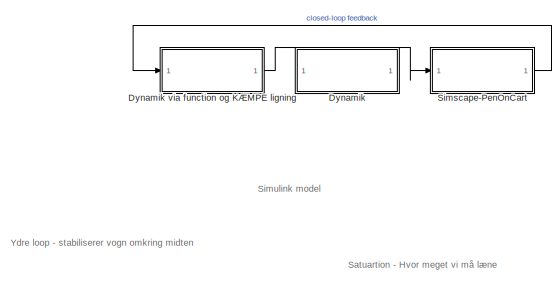
[diagram: root canvas - part 1/2, top left region]
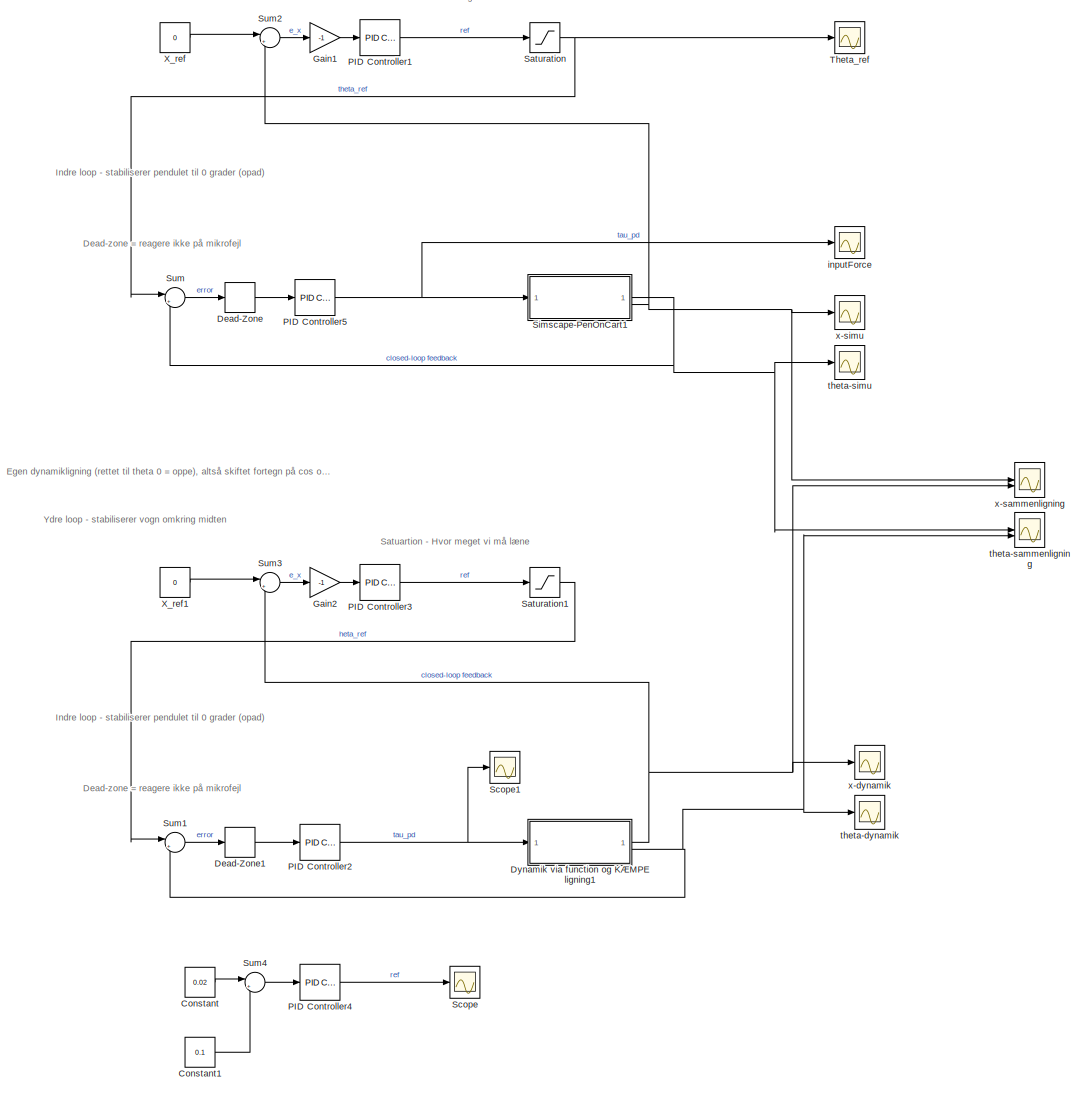
[diagram: root canvas - part 2/2, most of the canvas]
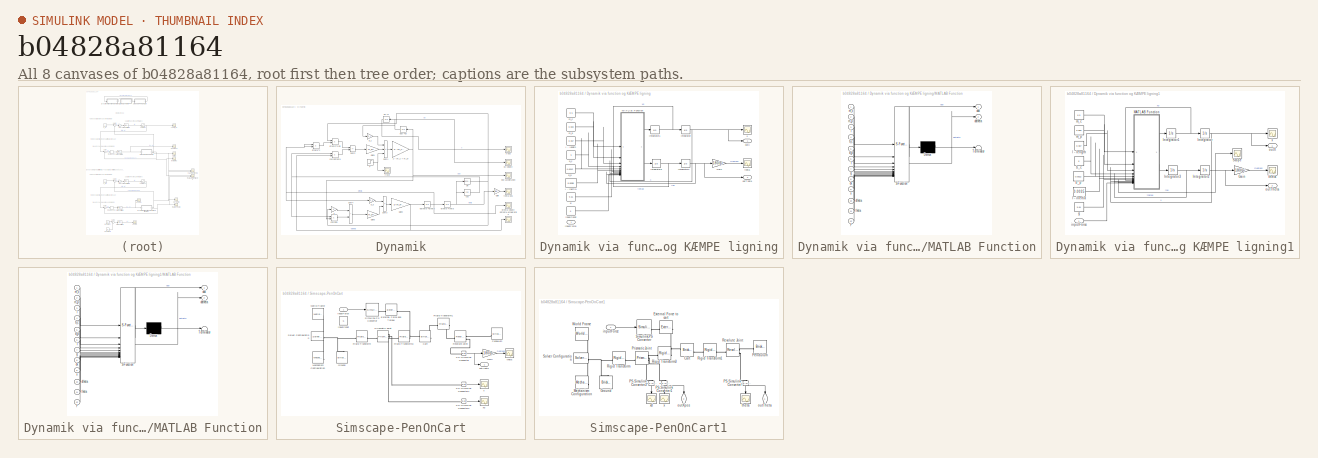
[diagram: thumbnail index - all 8 canvases of the model, root first then tree order]
MODEL slx_b04828a81164
KIND model
CONFIG AbsTol = auto
CONFIG EnableMultiTasking = off
CONFIG FixedStep = 0.01
CONFIG MaxStep = 0.01
CONFIG MinStep = 1e-6
CONFIG RelTol = 1e-3
CONFIG SampleTimeConstraint = Unconstrained
CONFIG SolverName = ode45
CONFIG StartTime = 0.0
CONFIG StopTime = 10
BLOCK [Constant] Constant
  Value = 0.02
BLOCK [Constant] Constant1
  Value = 0.1
BLOCK [DeadZone] Dead-Zone
  LowerValue = 0
  UpperValue = 0
BLOCK [DeadZone] Dead-Zone1
  LowerValue = 0
  UpperValue = 0
BLOCK [SubSystem] Dynamik
  Commented = on
BLOCK [SubSystem] Dynamik via function og KÆMPE ligning
  Commented = on
BLOCK [Gain] Dynamik via function og KÆMPE ligning/Gain
  Gain = 180/pi
BLOCK [Constant] Dynamik via function og KÆMPE ligning/I - inertia
  Value = 0.0035
BLOCK [Integrator] Dynamik via function og KÆMPE ligning/Integrator
BLOCK [Integrator] Dynamik via function og KÆMPE ligning/Integrator1
BLOCK [Integrator] Dynamik via function og KÆMPE ligning/Integrator2
  InitialCondition = pi/3
BLOCK [Integrator] Dynamik via function og KÆMPE ligning/Integrator3
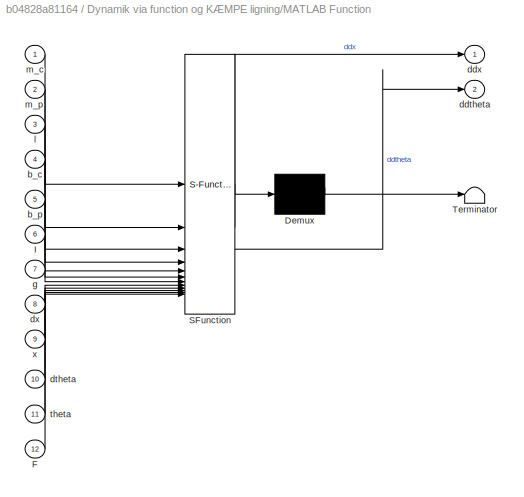
BLOCK [SubSystem] Dynamik via function og KÆMPE ligning/MATLAB Function
  ErrorFcn = Stateflow.Translate.translate
  PermitHierarchicalResolution = ExplicitOnly
  SFBlockType = MATLAB Function
  TreatAsAtomicUnit = on
BLOCK [Demux] Dynamik via function og KÆMPE ligning/MATLAB Function/ Demux 
  Outputs = 1
BLOCK [S-Function] Dynamik via function og KÆMPE ligning/MATLAB Function/ SFunction 
  EnableBusSupport = on
  FunctionName = sf_sfun
  PortCounts = [12 3]
  SFcnIsStateOwnerBlock = off
  SFunctionDeploymentMode = off
  Tag = Stateflow S-Function 2
BLOCK [Terminator] Dynamik via function og KÆMPE ligning/MATLAB Function/ Terminator 
BLOCK [Inport] Dynamik via function og KÆMPE ligning/MATLAB Function/F
  Port = 12
BLOCK [Inport] Dynamik via function og KÆMPE ligning/MATLAB Function/I
  Port = 6
BLOCK [Inport] Dynamik via function og KÆMPE ligning/MATLAB Function/b_c
  Port = 4
BLOCK [Inport] Dynamik via function og KÆMPE ligning/MATLAB Function/b_p
  Port = 5
BLOCK [Outport] Dynamik via function og KÆMPE ligning/MATLAB Function/ddtheta
  Port = 2
BLOCK [Outport] Dynamik via function og KÆMPE ligning/MATLAB Function/ddx
BLOCK [Inport] Dynamik via function og KÆMPE ligning/MATLAB Function/dtheta
  Port = 10
BLOCK [Inport] Dynamik via function og KÆMPE ligning/MATLAB Function/dx
  Port = 8
BLOCK [Inport] Dynamik via function og KÆMPE ligning/MATLAB Function/g
  Port = 7
BLOCK [Inport] Dynamik via function og KÆMPE ligning/MATLAB Function/l
  Port = 3
BLOCK [Inport] Dynamik via function og KÆMPE ligning/MATLAB Function/m_c
BLOCK [Inport] Dynamik via function og KÆMPE ligning/MATLAB Function/m_p
  Port = 2
BLOCK [Inport] Dynamik via function og KÆMPE ligning/MATLAB Function/theta
  Port = 11
BLOCK [Inport] Dynamik via function og KÆMPE ligning/MATLAB Function/x
  Port = 9
BLOCK [Constant] Dynamik via function og KÆMPE ligning/b_c
  Value = 5
BLOCK [Constant] Dynamik via function og KÆMPE ligning/b_p
  Value = 0.0012
BLOCK [Constant] Dynamik via function og KÆMPE ligning/g
  Value = 9.81
BLOCK [Constant] Dynamik via function og KÆMPE ligning/inputConst
  Value = 0
BLOCK [Inport] Dynamik via function og KÆMPE ligning/inputForce
BLOCK [Constant] Dynamik via function og KÆMPE ligning/l - length
  Value = 0.357
BLOCK [Constant] Dynamik via function og KÆMPE ligning/m_c
  Value = 0.5
BLOCK [Constant] Dynamik via function og KÆMPE ligning/m_p
  Value = 0.083
BLOCK [Outport] Dynamik via function og KÆMPE ligning/outTheta
  Port = 2
BLOCK [Outport] Dynamik via function og KÆMPE ligning/outX
BLOCK [Scope] Dynamik via function og KÆMPE ligning/theta
  Floating = off
  NumInputPorts = 1
  ScopeSpecificationString = Simulink.scopes.TimeScopeBlockCfg('CurrentConfiguration', extmgr.ConfigurationSet(extmgr.Configuration('Core','General UI',true),extmgr.Configuration('Core','Source UI',true),extmgr.Configuration('Sources','WiredSimulink',true,'DataLoggingVariableName','ScopeData2'),extmgr.Configuration('Visuals','Time Domain',true,'SerializedDisplays',{struct('MinYLimReal','-72.6893','MaxYLimReal','74.74326','YLa...<+1459ch>
BLOCK [Scope] Dynamik via function og KÆMPE ligning/x
  Floating = off
  NumInputPorts = 1
  ScopeSpecificationString = Simulink.scopes.TimeScopeBlockCfg('CurrentConfiguration', extmgr.ConfigurationSet(extmgr.Configuration('Core','General UI',true),extmgr.Configuration('Core','Source UI',true),extmgr.Configuration('Sources','WiredSimulink',true,'DataLoggingVariableName','ScopeData1'),extmgr.Configuration('Visuals','Time Domain',true,'SerializedDisplays',{struct('MinYLimReal','-0.02587','MaxYLimReal','0.02771','YLab...<+1449ch>
BLOCK [SubSystem] Dynamik via function og KÆMPE ligning1
BLOCK [Gain] Dynamik via function og KÆMPE ligning1/Gain
  Gain = 180/pi
BLOCK [Constant] Dynamik via function og KÆMPE ligning1/I - inertia
  Value = 0.0035
BLOCK [Integrator] Dynamik via function og KÆMPE ligning1/Integrator
BLOCK [Integrator] Dynamik via function og KÆMPE ligning1/Integrator1
BLOCK [Integrator] Dynamik via function og KÆMPE ligning1/Integrator2
  InitialCondition = 10*pi/180
BLOCK [Integrator] Dynamik via function og KÆMPE ligning1/Integrator3
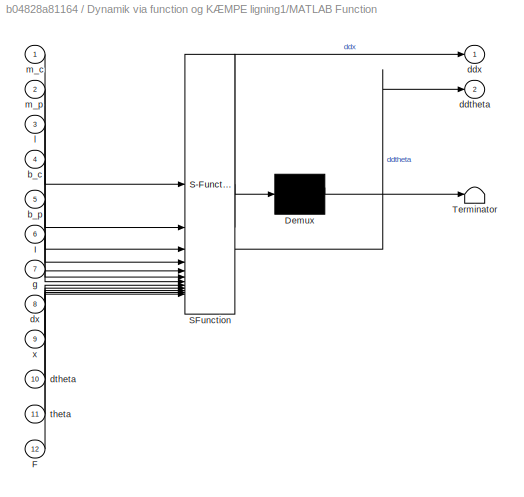
BLOCK [SubSystem] Dynamik via function og KÆMPE ligning1/MATLAB Function
  ErrorFcn = Stateflow.Translate.translate
  PermitHierarchicalResolution = ExplicitOnly
  SFBlockType = MATLAB Function
  TreatAsAtomicUnit = on
BLOCK [Demux] Dynamik via function og KÆMPE ligning1/MATLAB Function/ Demux 
  Outputs = 1
BLOCK [S-Function] Dynamik via function og KÆMPE ligning1/MATLAB Function/ SFunction 
  EnableBusSupport = on
  FunctionName = sf_sfun
  PortCounts = [12 3]
  SFcnIsStateOwnerBlock = off
  SFunctionDeploymentMode = off
  Tag = Stateflow S-Function 1
BLOCK [Terminator] Dynamik via function og KÆMPE ligning1/MATLAB Function/ Terminator 
BLOCK [Inport] Dynamik via function og KÆMPE ligning1/MATLAB Function/F
  Port = 12
BLOCK [Inport] Dynamik via function og KÆMPE ligning1/MATLAB Function/I
  Port = 6
BLOCK [Inport] Dynamik via function og KÆMPE ligning1/MATLAB Function/b_c
  Port = 4
BLOCK [Inport] Dynamik via function og KÆMPE ligning1/MATLAB Function/b_p
  Port = 5
BLOCK [Outport] Dynamik via function og KÆMPE ligning1/MATLAB Function/ddtheta
  Port = 2
BLOCK [Outport] Dynamik via function og KÆMPE ligning1/MATLAB Function/ddx
BLOCK [Inport] Dynamik via function og KÆMPE ligning1/MATLAB Function/dtheta
  Port = 10
BLOCK [Inport] Dynamik via function og KÆMPE ligning1/MATLAB Function/dx
  Port = 8
BLOCK [Inport] Dynamik via function og KÆMPE ligning1/MATLAB Function/g
  Port = 7
BLOCK [Inport] Dynamik via function og KÆMPE ligning1/MATLAB Function/l
  Port = 3
BLOCK [Inport] Dynamik via function og KÆMPE ligning1/MATLAB Function/m_c
BLOCK [Inport] Dynamik via function og KÆMPE ligning1/MATLAB Function/m_p
  Port = 2
BLOCK [Inport] Dynamik via function og KÆMPE ligning1/MATLAB Function/theta
  Port = 11
BLOCK [Inport] Dynamik via function og KÆMPE ligning1/MATLAB Function/x
  Port = 9
BLOCK [Scope] Dynamik via function og KÆMPE ligning1/Scope
  Floating = off
  NumInputPorts = 1
  ScopeSpecificationString = Simulink.scopes.TimeScopeBlockCfg('CurrentConfiguration', extmgr.ConfigurationSet(extmgr.Configuration('Core','General UI',true),extmgr.Configuration('Core','Source UI',true),extmgr.Configuration('Sources','WiredSimulink',true,'DataLoggingVariableName','ScopeData1'),extmgr.Configuration('Visuals','Time Domain',true,'SerializedDisplays',{struct('MinYLimReal','5.7338','MaxYLimReal','6.8455','YLabelR...<+1441ch>
BLOCK [Constant] Dynamik via function og KÆMPE ligning1/b_c
  Value = 5
BLOCK [Constant] Dynamik via function og KÆMPE ligning1/b_p
  Value = 0.0012
BLOCK [Constant] Dynamik via function og KÆMPE ligning1/g
  Value = 9.81
BLOCK [Inport] Dynamik via function og KÆMPE ligning1/inputForce
BLOCK [Constant] Dynamik via function og KÆMPE ligning1/l - length
  Value = 0.357
BLOCK [Constant] Dynamik via function og KÆMPE ligning1/m_c
  Value = 0.5
BLOCK [Constant] Dynamik via function og KÆMPE ligning1/m_p
  Value = 0.083
BLOCK [Outport] Dynamik via function og KÆMPE ligning1/outTheta
  Port = 2
BLOCK [Outport] Dynamik via function og KÆMPE ligning1/outX
BLOCK [Scope] Dynamik via function og KÆMPE ligning1/theta
  Floating = off
  NumInputPorts = 1
  ScopeSpecificationString = Simulink.scopes.TimeScopeBlockCfg('CurrentConfiguration', extmgr.ConfigurationSet(extmgr.Configuration('Core','General UI',true),extmgr.Configuration('Core','Source UI',true),extmgr.Configuration('Sources','WiredSimulink',true,'DataLoggingVariableName','ScopeData2'),extmgr.Configuration('Visuals','Time Domain',true,'SerializedDisplays',{struct('MinYLimReal','328.52265','MaxYLimReal','392.21808','Y...<+1469ch>
BLOCK [Scope] Dynamik via function og KÆMPE ligning1/x
  Floating = off
  NumInputPorts = 1
  ScopeSpecificationString = Simulink.scopes.TimeScopeBlockCfg('CurrentConfiguration', extmgr.ConfigurationSet(extmgr.Configuration('Core','General UI',true),extmgr.Configuration('Core','Source UI',true),extmgr.Configuration('Sources','WiredSimulink',true,'DataLoggingVariableName','ScopeData1'),extmgr.Configuration('Visuals','Time Domain',true,'SerializedDisplays',{struct('MinYLimReal','-0.16068','MaxYLimReal','0.04488','YLab...<+1449ch>
BLOCK [Gain] Dynamik/1// (m_c + m_p)
  Gain = 1/ (m_c + m_p)
BLOCK [Step] Dynamik/F
  After = 0
  SampleTime = 1
BLOCK [Gain] Dynamik/Gain
  Gain = 1/(pi/180)
BLOCK [Gain] Dynamik/Gain1
  Gain = m_p*l
BLOCK [Gain] Dynamik/Gain2
  Gain = 1/(m_p*(l^2)+I)
BLOCK [Gain] Dynamik/Gain3
  Gain = m_p*l
BLOCK [Sum] Dynamik/Sum1
  IconShape = rectangular
  Inputs = -++
BLOCK [Sum] Dynamik/Sum2
  IconShape = rectangular
  Inputs = +-
BLOCK [Sum] Dynamik/Sum3
  IconShape = rectangular
  Inputs = --
BLOCK [Sum] Dynamik/Sum4
  IconShape = rectangular
BLOCK [Gain] Dynamik/b_c
  Gain = b_c
BLOCK [Gain] Dynamik/b_p
  Gain = b_p
BLOCK [Trigonometry] Dynamik/cos
  Operator = cos
BLOCK [Product] Dynamik/cos*ddtheta
BLOCK [Product] Dynamik/cos*ddx
BLOCK [Integrator] Dynamik/ddtheta->dtheta
BLOCK [Scope] Dynamik/ddtheta-acceleration
  Floating = off
  NumInputPorts = 1
  ScopeSpecificationString = Simulink.scopes.TimeScopeBlockCfg('CurrentConfiguration', extmgr.ConfigurationSet(extmgr.Configuration('Core','General UI',true),extmgr.Configuration('Core','Source UI',true),extmgr.Configuration('Sources','WiredSimulink',true,'DataLoggingVariableName','ScopeData4'),extmgr.Configuration('Visuals','Time Domain',true,'SerializedDisplays',{struct('MinYLimReal','-0.35766','MaxYLimReal','0.04854','YLab...<+1455ch>
BLOCK [Integrator] Dynamik/ddx->dx
  NameLocation = top
BLOCK [Scope] Dynamik/ddx-acceleration
  Floating = off
  NumInputPorts = 1
  ScopeSpecificationString = Simulink.scopes.TimeScopeBlockCfg('CurrentConfiguration', extmgr.ConfigurationSet(extmgr.Configuration('Core','General UI',true),extmgr.Configuration('Core','Source UI',true),extmgr.Configuration('Sources','WiredSimulink',true,'DataLoggingVariableName','ScopeData3'),extmgr.Configuration('Visuals','Time Domain',true,'SerializedDisplays',{struct('MinYLimReal','-0.48595','MaxYLimReal','0.62768','YLab...<+1451ch>
BLOCK [Integrator] Dynamik/dtheta->theta
  InitialCondition = pi/3
BLOCK [Scope] Dynamik/dtheta-velocity
  Floating = off
  NumInputPorts = 1
  ScopeSpecificationString = Simulink.scopes.TimeScopeBlockCfg('CurrentConfiguration', extmgr.ConfigurationSet(extmgr.Configuration('Core','General UI',true),extmgr.Configuration('Core','Source UI',true),extmgr.Configuration('Sources','WiredSimulink',true,'DataLoggingVariableName','ScopeData5'),extmgr.Configuration('Visuals','Time Domain',true,'SerializedDisplays',{struct('MinYLimReal','-2.5243','MaxYLimReal','1.09547','YLabe...<+1450ch>
BLOCK [Product] Dynamik/dtheta^2
BLOCK [Product] Dynamik/dtheta^2*sin
BLOCK [Integrator] Dynamik/dx->x
  NameLocation = top
BLOCK [Scope] Dynamik/dx-velocity
  Floating = off
  NumInputPorts = 1
  ScopeSpecificationString = Simulink.scopes.TimeScopeBlockCfg('CurrentConfiguration', extmgr.ConfigurationSet(extmgr.Configuration('Core','General UI',true),extmgr.Configuration('Core','Source UI',true),extmgr.Configuration('Sources','WiredSimulink',true,'DataLoggingVariableName','ScopeData2'),extmgr.Configuration('Visuals','Time Domain',true,'SerializedDisplays',{struct('MinYLimReal','-0.07254','MaxYLimReal','0.14381','YLab...<+1450ch>
BLOCK [Scope] Dynamik/froce
  Floating = off
  NumInputPorts = 1
  ScopeSpecificationString = Simulink.scopes.TimeScopeBlockCfg('CurrentConfiguration', extmgr.ConfigurationSet(extmgr.Configuration('Core','General UI',true),extmgr.Configuration('Core','Source UI',true),extmgr.Configuration('Sources','WiredSimulink',true,'DataLoggingVariableName','ScopeData7'),extmgr.Configuration('Visuals','Time Domain',true,'SerializedDisplays',{struct('MinYLimReal','-1.00000','MaxYLimReal','1.00000','YLab...<+1449ch>
BLOCK [Gain] Dynamik/g
  Gain = g
BLOCK [Trigonometry] Dynamik/sin
BLOCK [Scope] Dynamik/theta-pos
  Floating = off
  NumInputPorts = 1
  ScopeSpecificationString = Simulink.scopes.TimeScopeBlockCfg('CurrentConfiguration', extmgr.ConfigurationSet(extmgr.Configuration('Core','General UI',true),extmgr.Configuration('Core','Source UI',true),extmgr.Configuration('Sources','WiredSimulink',true,'DataLoggingVariableName','ScopeData6'),extmgr.Configuration('Visuals','Time Domain',true,'SerializedDisplays',{struct('MinYLimReal','-31.80084','MaxYLimReal','70.20009','YL...<+1458ch>
BLOCK [Scope] Dynamik/x-pos
  Floating = off
  NumInputPorts = 1
  ScopeSpecificationString = Simulink.scopes.TimeScopeBlockCfg('CurrentConfiguration', extmgr.ConfigurationSet(extmgr.Configuration('Core','General UI',true),extmgr.Configuration('Core','Source UI',true),extmgr.Configuration('Sources','WiredSimulink',true,'DataLoggingVariableName','ScopeData1'),extmgr.Configuration('Visuals','Time Domain',true,'SerializedDisplays',{struct('MinYLimReal','-0.00862','MaxYLimReal','0.07759','YLab...<+1478ch>
BLOCK [Gain] Gain1
  Gain = -1
BLOCK [Gain] Gain2
  Gain = -1
BLOCK [Reference] PID Controller1  REF=slpidlib/PID Controller
  LibrarySourceBlock = simulink/Continuous/PID Controller
  SourceBlock = slpidlib/PID Controller
  SourceType = PID 1dof
BLOCK [Reference] PID Controller2  REF=slpidlib/PID Controller
  LibrarySourceBlock = simulink/Continuous/PID Controller
  SourceBlock = slpidlib/PID Controller
  SourceType = PID 1dof
BLOCK [Reference] PID Controller3  REF=slpidlib/PID Controller
  LibrarySourceBlock = simulink/Continuous/PID Controller
  SourceBlock = slpidlib/PID Controller
  SourceType = PID 1dof
BLOCK [Reference] PID Controller4  REF=slpidlib/PID Controller
  LibrarySourceBlock = simulink/Continuous/PID Controller
  SourceBlock = slpidlib/PID Controller
  SourceType = PID 1dof
BLOCK [Reference] PID Controller5  REF=slpidlib/PID Controller
  LibrarySourceBlock = simulink/Continuous/PID Controller
  SourceBlock = slpidlib/PID Controller
  SourceType = PID 1dof
BLOCK [Saturate] Saturation
  LowerLimit = -0.02
  UpperLimit = 0.02
BLOCK [Saturate] Saturation1
  LowerLimit = -0.02
  UpperLimit = 0.02
BLOCK [Scope] Scope
  Floating = off
  NumInputPorts = 1
  ScopeSpecificationString = Simulink.scopes.TimeScopeBlockCfg('CurrentConfiguration', extmgr.ConfigurationSet(extmgr.Configuration('Core','General UI',true),extmgr.Configuration('Core','Source UI',true),extmgr.Configuration('Sources','WiredSimulink',true,'DataLoggingVariableName','ScopeData1'),extmgr.Configuration('Visuals','Time Domain',true,'SerializedDisplays',{struct('MinYLimReal','-1.90821','MaxYLimReal','1.81571','YLab...<+1470ch>
BLOCK [Scope] Scope1
  Floating = off
  NumInputPorts = 1
  ScopeSpecificationString = Simulink.scopes.TimeScopeBlockCfg('CurrentConfiguration', extmgr.ConfigurationSet(extmgr.Configuration('Core','General UI',true),extmgr.Configuration('Core','Source UI',true),extmgr.Configuration('Sources','WiredSimulink',true,'DataLoggingVariableName','ScopeData2'),extmgr.Configuration('Visuals','Time Domain',true,'SerializedDisplays',{struct('MinYLimReal','-46.60821','MaxYLimReal','19.47386','YL...<+1460ch>
BLOCK [SubSystem] Simscape-PenOnCart
  Commented = on
BLOCK [Reference] Simscape-PenOnCart/Cart  REF=sm_lib/Body Elements/Brick Solid
  SourceBlock = sm_lib/Body Elements/Brick Solid
  SourceType = Brick Solid
BLOCK [Reference] Simscape-PenOnCart/External Force and Torque  REF=sm_lib/Forces and
Torques/External Force
and Torque
  SourceBlock = sm_lib/Forces and\nTorques/External Force\nand Torque
  SourceType = External Force\nand Torque
BLOCK [Gain] Simscape-PenOnCart/Gain
  Gain = 180/pi
BLOCK [Reference] Simscape-PenOnCart/Ground  REF=sm_lib/Body Elements/Brick Solid
  NameLocation = right
  SourceBlock = sm_lib/Body Elements/Brick Solid
  SourceType = Brick Solid
BLOCK [Reference] Simscape-PenOnCart/Mechanism Configuration  REF=sm_lib/Utilities/Mechanism
Configuration
  SourceBlock = sm_lib/Utilities/Mechanism\nConfiguration
  SourceType = Mechanism\nConfiguration
BLOCK [Reference] Simscape-PenOnCart/PS-Simulink Converter  REF=nesl_utility/PS-Simulink
Converter
  SourceBlock = nesl_utility/PS-Simulink\nConverter
  SourceType = PS-Simulink\nConverter
BLOCK [Reference] Simscape-PenOnCart/PS-Simulink Converter1  REF=nesl_utility/PS-Simulink
Converter
  SourceBlock = nesl_utility/PS-Simulink\nConverter
  SourceType = PS-Simulink\nConverter
BLOCK [Reference] Simscape-PenOnCart/PS-Simulink Converter2  REF=nesl_utility/PS-Simulink
Converter
  SourceBlock = nesl_utility/PS-Simulink\nConverter
  SourceType = PS-Simulink\nConverter
BLOCK [Reference] Simscape-PenOnCart/Pendulum  REF=sm_lib/Body Elements/Brick Solid
  SourceBlock = sm_lib/Body Elements/Brick Solid
  SourceType = Brick Solid
BLOCK [Reference] Simscape-PenOnCart/Prismatic Joint  REF=sm_lib/Joints/Prismatic
Joint
  SourceBlock = sm_lib/Joints/Prismatic\nJoint
  SourceType = Prismatic\nJoint
BLOCK [Reference] Simscape-PenOnCart/Revolute Joint  REF=sm_lib/Joints/Revolute Joint
  SourceBlock = sm_lib/Joints/Revolute Joint
  SourceType = Revolute Joint
BLOCK [Reference] Simscape-PenOnCart/Rigid Transform  REF=sm_lib/Frames and
Transforms/Rigid
Transform
  SourceBlock = sm_lib/Frames and\nTransforms/Rigid\nTransform
  SourceType = Rigid\nTransform
BLOCK [Reference] Simscape-PenOnCart/Rigid Transform1  REF=sm_lib/Frames and
Transforms/Rigid
Transform
  NameLocation = top
  SourceBlock = sm_lib/Frames and\nTransforms/Rigid\nTransform
  SourceType = Rigid\nTransform
BLOCK [Reference] Simscape-PenOnCart/Rigid Transform3  REF=sm_lib/Frames and
Transforms/Rigid
Transform
  NameLocation = top
  SourceBlock = sm_lib/Frames and\nTransforms/Rigid\nTransform
  SourceType = Rigid\nTransform
BLOCK [Reference] Simscape-PenOnCart/Simulink-PS Converter  REF=nesl_utility/Simulink-PS
Converter
  SourceBlock = nesl_utility/Simulink-PS\nConverter
  SourceType = Simulink-PS\nConverter
BLOCK [Reference] Simscape-PenOnCart/Solver Configuration  REF=nesl_utility/Solver
Configuration
  SourceBlock = nesl_utility/Solver\nConfiguration
  SourceType = Solver\nConfiguration
BLOCK [Reference] Simscape-PenOnCart/World Frame  REF=sm_lib/Frames and
Transforms/World Frame
  SourceBlock = sm_lib/Frames and\nTransforms/World Frame
  SourceType = World Frame
BLOCK [Constant] Simscape-PenOnCart/inputConst
  Value = -5
BLOCK [Inport] Simscape-PenOnCart/inputForce
BLOCK [Outport] Simscape-PenOnCart/outTheta
BLOCK [Scope] Simscape-PenOnCart/theta
  Floating = off
  NumInputPorts = 1
  ScopeSpecificationString = Simulink.scopes.TimeScopeBlockCfg('CurrentConfiguration', extmgr.ConfigurationSet(extmgr.Configuration('Core','General UI',true),extmgr.Configuration('Core','Source UI',true),extmgr.Configuration('Sources','WiredSimulink',true,'DataLoggingVariableName','ScopeData1'),extmgr.Configuration('Visuals','Time Domain',true,'SerializedDisplays',{struct('MinYLimReal','-69.44281','MaxYLimReal','429.45131','Y...<+1494ch>
BLOCK [Scope] Simscape-PenOnCart/x
  Floating = off
  NumInputPorts = 1
  ScopeSpecificationString = Simulink.scopes.TimeScopeBlockCfg('CurrentConfiguration', extmgr.ConfigurationSet(extmgr.Configuration('Core','General UI',true),extmgr.Configuration('Core','Source UI',true),extmgr.Configuration('Sources','WiredSimulink',true,'DataLoggingVariableName','ScopeData2'),extmgr.Configuration('Visuals','Time Domain',true,'SerializedDisplays',{struct('MinYLimReal','-267.56382','MaxYLimReal','29.72931','Y...<+1511ch>
BLOCK [Scope] Simscape-PenOnCart/xd
  Floating = off
  NumInputPorts = 1
  ScopeSpecificationString = Simulink.scopes.TimeScopeBlockCfg('CurrentConfiguration', extmgr.ConfigurationSet(extmgr.Configuration('Core','General UI',true),extmgr.Configuration('Core','Source UI',true),extmgr.Configuration('Sources','WiredSimulink',true,'DataLoggingVariableName','ScopeData1'),extmgr.Configuration('Visuals','Time Domain',true,'SerializedDisplays',{struct('MinYLimReal','-78.6556','MaxYLimReal','9.50406','YLab...<+1499ch>
BLOCK [SubSystem] Simscape-PenOnCart1
BLOCK [Reference] Simscape-PenOnCart1/Cart  REF=sm_lib/Body Elements/Brick Solid
  SourceBlock = sm_lib/Body Elements/Brick Solid
  SourceType = Brick Solid
BLOCK [Reference] Simscape-PenOnCart1/External Force to cart  REF=sm_lib/Forces and
Torques/External Force
and Torque
  SourceBlock = sm_lib/Forces and\nTorques/External Force\nand Torque
  SourceType = External Force\nand Torque
BLOCK [Reference] Simscape-PenOnCart1/Ground  REF=sm_lib/Body Elements/Brick Solid
  NameLocation = right
  SourceBlock = sm_lib/Body Elements/Brick Solid
  SourceType = Brick Solid
BLOCK [Reference] Simscape-PenOnCart1/Mechanism Configuration  REF=sm_lib/Utilities/Mechanism
Configuration
  SourceBlock = sm_lib/Utilities/Mechanism\nConfiguration
  SourceType = Mechanism\nConfiguration
BLOCK [Reference] Simscape-PenOnCart1/PS-Simulink Converter  REF=nesl_utility/PS-Simulink
Converter
  NameLocation = left
  SourceBlock = nesl_utility/PS-Simulink\nConverter
  SourceType = PS-Simulink\nConverter
BLOCK [Reference] Simscape-PenOnCart1/PS-Simulink Converter1  REF=nesl_utility/PS-Simulink
Converter
  NameLocation = left
  SourceBlock = nesl_utility/PS-Simulink\nConverter
  SourceType = PS-Simulink\nConverter
BLOCK [Reference] Simscape-PenOnCart1/PS-Simulink Converter2  REF=nesl_utility/PS-Simulink
Converter
  NameLocation = left
  SourceBlock = nesl_utility/PS-Simulink\nConverter
  SourceType = PS-Simulink\nConverter
BLOCK [Reference] Simscape-PenOnCart1/Pendulum  REF=sm_lib/Body Elements/Brick Solid
  SourceBlock = sm_lib/Body Elements/Brick Solid
  SourceType = Brick Solid
BLOCK [Reference] Simscape-PenOnCart1/Prismatic Joint  REF=sm_lib/Joints/Prismatic
Joint
  SourceBlock = sm_lib/Joints/Prismatic\nJoint
  SourceType = Prismatic\nJoint
BLOCK [Reference] Simscape-PenOnCart1/Revolute Joint  REF=sm_lib/Joints/Revolute Joint
  SourceBlock = sm_lib/Joints/Revolute Joint
  SourceType = Revolute Joint
BLOCK [Reference] Simscape-PenOnCart1/Rigid Transform  REF=sm_lib/Frames and
Transforms/Rigid
Transform
  SourceBlock = sm_lib/Frames and\nTransforms/Rigid\nTransform
  SourceType = Rigid\nTransform
BLOCK [Reference] Simscape-PenOnCart1/Rigid Transform1  REF=sm_lib/Frames and
Transforms/Rigid
Transform
  SourceBlock = sm_lib/Frames and\nTransforms/Rigid\nTransform
  SourceType = Rigid\nTransform
BLOCK [Reference] Simscape-PenOnCart1/Rigid Transform3  REF=sm_lib/Frames and
Transforms/Rigid
Transform
  NameLocation = top
  SourceBlock = sm_lib/Frames and\nTransforms/Rigid\nTransform
  SourceType = Rigid\nTransform
BLOCK [Reference] Simscape-PenOnCart1/Simulink-PS Converter  REF=nesl_utility/Simulink-PS
Converter
  SourceBlock = nesl_utility/Simulink-PS\nConverter
  SourceType = Simulink-PS\nConverter
BLOCK [Reference] Simscape-PenOnCart1/Solver Configuration  REF=nesl_utility/Solver
Configuration
  SourceBlock = nesl_utility/Solver\nConfiguration
  SourceType = Solver\nConfiguration
BLOCK [Reference] Simscape-PenOnCart1/World Frame  REF=sm_lib/Frames and
Transforms/World Frame
  SourceBlock = sm_lib/Frames and\nTransforms/World Frame
  SourceType = World Frame
BLOCK [Inport] Simscape-PenOnCart1/inputForce
BLOCK [Outport] Simscape-PenOnCart1/outTheta
  NameLocation = right
BLOCK [Outport] Simscape-PenOnCart1/outXpos
  NameLocation = right
  Port = 2
BLOCK [Scope] Simscape-PenOnCart1/theta
  Floating = off
  NameLocation = left
  NumInputPorts = 1
  ScopeSpecificationString = Simulink.scopes.TimeScopeBlockCfg('CurrentConfiguration', extmgr.ConfigurationSet(extmgr.Configuration('Core','General UI',true),extmgr.Configuration('Core','Source UI',true),extmgr.Configuration('Sources','WiredSimulink',true,'DataLoggingVariableName','ScopeData1'),extmgr.Configuration('Visuals','Time Domain',true,'SerializedDisplays',{struct('MinYLimReal','-0.00012','MaxYLimReal','0.00003','YLab...<+1517ch>
BLOCK [Scope] Simscape-PenOnCart1/x
  Floating = off
  NameLocation = right
  NumInputPorts = 1
  ScopeSpecificationString = Simulink.scopes.TimeScopeBlockCfg('CurrentConfiguration', extmgr.ConfigurationSet(extmgr.Configuration('Core','General UI',true),extmgr.Configuration('Core','Source UI',true),extmgr.Configuration('Sources','WiredSimulink',true,'DataLoggingVariableName','ScopeData2'),extmgr.Configuration('Visuals','Time Domain',true,'SerializedDisplays',{struct('MinYLimReal','-0.09295','MaxYLimReal','0.02347','YLab...<+1499ch>
BLOCK [Scope] Simscape-PenOnCart1/xd
  Floating = off
  NameLocation = left
  NumInputPorts = 1
  ScopeSpecificationString = Simulink.scopes.TimeScopeBlockCfg('CurrentConfiguration', extmgr.ConfigurationSet(extmgr.Configuration('Core','General UI',true),extmgr.Configuration('Core','Source UI',true),extmgr.Configuration('Sources','WiredSimulink',true,'DataLoggingVariableName','ScopeData1'),extmgr.Configuration('Visuals','Time Domain',true,'SerializedDisplays',{struct('MinYLimReal','-0.19639','MaxYLimReal','0.25037','YLab...<+1499ch>
BLOCK [Sum] Sum
  Inputs = |+-
BLOCK [Sum] Sum1
  Inputs = |+-
BLOCK [Sum] Sum2
  Inputs = |+-
BLOCK [Sum] Sum3
  Inputs = |+-
BLOCK [Sum] Sum4
  Inputs = |+-
BLOCK [Scope] Theta_ref
  Floating = off
  NumInputPorts = 1
  ScopeSpecificationString = Simulink.scopes.TimeScopeBlockCfg('CurrentConfiguration', extmgr.ConfigurationSet(extmgr.Configuration('Core','General UI',true),extmgr.Configuration('Core','Source UI',true),extmgr.Configuration('Sources','WiredSimulink',true,'DataLoggingVariableName','ScopeData1'),extmgr.Configuration('Visuals','Time Domain',true,'SerializedDisplays',{struct('MinYLimReal','-0.025','MaxYLimReal','0.025','YLabelRe...<+1474ch>
BLOCK [Constant] X_ref
  Value = 0
BLOCK [Constant] X_ref1
  Value = 0
BLOCK [Scope] inputForce
  Floating = off
  NumInputPorts = 1
  ScopeSpecificationString = Simulink.scopes.TimeScopeBlockCfg('CurrentConfiguration', extmgr.ConfigurationSet(extmgr.Configuration('Core','General UI',true),extmgr.Configuration('Core','Source UI',true),extmgr.Configuration('Sources','WiredSimulink',true,'DataLoggingVariableName','ScopeData2'),extmgr.Configuration('Visuals','Time Domain',true,'SerializedDisplays',{struct('MinYLimReal','-179.05758','MaxYLimReal','105.46368','...<+1487ch>
BLOCK [Scope] theta-dynamik
  Floating = off
  NumInputPorts = 1
  ScopeSpecificationString = Simulink.scopes.TimeScopeBlockCfg('CurrentConfiguration', extmgr.ConfigurationSet(extmgr.Configuration('Core','General UI',true),extmgr.Configuration('Core','Source UI',true),extmgr.Configuration('Sources','WiredSimulink',true,'DataLoggingVariableName','ScopeData3'),extmgr.Configuration('Visuals','Time Domain',true,'SerializedDisplays',{struct('MinYLimReal','-0.55966','MaxYLimReal','5.8754','YLabe...<+1563ch>
BLOCK [Scope] theta-sammenligning
  Floating = off
  NumInputPorts = 2
  ScopeSpecificationString = Simulink.scopes.TimeScopeBlockCfg('CurrentConfiguration', extmgr.ConfigurationSet(extmgr.Configuration('Core','General UI',true),extmgr.Configuration('Core','Source UI',true),extmgr.Configuration('Sources','WiredSimulink',true,'DataLoggingVariableName','ScopeData4'),extmgr.Configuration('Visuals','Time Domain',true,'SerializedDisplays',{struct('MinYLimReal','-0.04959','MaxYLimReal','0.12874','YLab...<+1586ch>
BLOCK [Scope] theta-simu
  Floating = off
  NumInputPorts = 1
  ScopeSpecificationString = Simulink.scopes.TimeScopeBlockCfg('CurrentConfiguration', extmgr.ConfigurationSet(extmgr.Configuration('Core','General UI',true),extmgr.Configuration('Core','Source UI',true),extmgr.Configuration('Sources','WiredSimulink',true,'DataLoggingVariableName','ScopeData5'),extmgr.Configuration('Visuals','Time Domain',true,'SerializedDisplays',{struct('MinYLimReal','-0.04959','MaxYLimReal','0.12874','YLab...<+1541ch>
BLOCK [Scope] x-dynamik
  Floating = off
  NumInputPorts = 1
  ScopeSpecificationString = Simulink.scopes.TimeScopeBlockCfg('CurrentConfiguration', extmgr.ConfigurationSet(extmgr.Configuration('Core','General UI',true),extmgr.Configuration('Core','Source UI',true),extmgr.Configuration('Sources','WiredSimulink',true,'DataLoggingVariableName','ScopeData6'),extmgr.Configuration('Visuals','Time Domain',true,'SerializedDisplays',{struct('MinYLimReal','-0.16068','MaxYLimReal','0.04488','YLab...<+1497ch>
BLOCK [Scope] x-sammenligning
  Floating = off
  NumInputPorts = 2
  ScopeSpecificationString = Simulink.scopes.TimeScopeBlockCfg('CurrentConfiguration', extmgr.ConfigurationSet(extmgr.Configuration('Core','General UI',true),extmgr.Configuration('Core','Source UI',true),extmgr.Configuration('Sources','WiredSimulink',true,'DataLoggingVariableName','ScopeData7'),extmgr.Configuration('Visuals','Time Domain',true,'SerializedDisplays',{struct('MinYLimReal','-0.16068','MaxYLimReal','0.04488','YLab...<+1521ch>
BLOCK [Scope] x-simu
  Floating = off
  NumInputPorts = 1
  ScopeSpecificationString = Simulink.scopes.TimeScopeBlockCfg('CurrentConfiguration', extmgr.ConfigurationSet(extmgr.Configuration('Core','General UI',true),extmgr.Configuration('Core','Source UI',true),extmgr.Configuration('Sources','WiredSimulink',true,'DataLoggingVariableName','ScopeData8'),extmgr.Configuration('Visuals','Time Domain',true,'SerializedDisplays',{struct('MinYLimReal','-0.10304','MaxYLimReal','0.02531','YLab...<+1498ch>
ANNOTATION (root): Dead-zone = reagere ikke på mikrofejl
ANNOTATION (root): Egen dynamikligning (rettet til theta 0 = oppe), altså skiftet fortegn på cos og sin
ANNOTATION (root): Indre loop - stabiliserer pendulet til 0 grader (opad)
ANNOTATION (root): Satuartion - Hvor meget vi må læne
ANNOTATION (root): Simulink model
ANNOTATION (root): Ydre loop - stabiliserer vogn omkring midten
LINE Constant1:1 -> Sum4:2
LINE Constant:1 -> Sum4:1
LINE Dead-Zone1:1 -> PID Controller2:1
LINE Dead-Zone:1 -> PID Controller5:1
LINE Dynamik via function og KÆMPE ligning/Gain:1 -> Dynamik via function og KÆMPE ligning/theta:1
LINE Dynamik via function og KÆMPE ligning/I - inertia:1 -> Dynamik via function og KÆMPE ligning/MATLAB Function:6
NET Dynamik via function og KÆMPE ligning/Integrator1:1 -> Dynamik via function og KÆMPE ligning/Integrator:1, Dynamik via function og KÆMPE ligning/MATLAB Function:8
NET Dynamik via function og KÆMPE ligning/Integrator2:1 -> Dynamik via function og KÆMPE ligning/Gain:1, Dynamik via function og KÆMPE ligning/MATLAB Function:11, Dynamik via function og KÆMPE ligning/outTheta:1
NET Dynamik via function og KÆMPE ligning/Integrator3:1 -> Dynamik via function og KÆMPE ligning/Integrator2:1, Dynamik via function og KÆMPE ligning/MATLAB Function:10
NET Dynamik via function og KÆMPE ligning/Integrator:1 -> Dynamik via function og KÆMPE ligning/MATLAB Function:9, Dynamik via function og KÆMPE ligning/outX:1, Dynamik via function og KÆMPE ligning/x:1
LINE Dynamik via function og KÆMPE ligning/MATLAB Function:1 -> Dynamik via function og KÆMPE ligning/Integrator1:1
LINE Dynamik via function og KÆMPE ligning/MATLAB Function:2 -> Dynamik via function og KÆMPE ligning/Integrator3:1
LINE Dynamik via function og KÆMPE ligning/b_c:1 -> Dynamik via function og KÆMPE ligning/MATLAB Function:4
LINE Dynamik via function og KÆMPE ligning/b_p:1 -> Dynamik via function og KÆMPE ligning/MATLAB Function:5
LINE Dynamik via function og KÆMPE ligning/g:1 -> Dynamik via function og KÆMPE ligning/MATLAB Function:7
LINE Dynamik via function og KÆMPE ligning/inputConst:1 -> Dynamik via function og KÆMPE ligning/MATLAB Function:12
LINE Dynamik via function og KÆMPE ligning/l - length:1 -> Dynamik via function og KÆMPE ligning/MATLAB Function:3
LINE Dynamik via function og KÆMPE ligning/m_c:1 -> Dynamik via function og KÆMPE ligning/MATLAB Function:1
LINE Dynamik via function og KÆMPE ligning/m_p:1 -> Dynamik via function og KÆMPE ligning/MATLAB Function:2
LINE Dynamik via function og KÆMPE ligning1/Gain:1 -> Dynamik via function og KÆMPE ligning1/theta:1
LINE Dynamik via function og KÆMPE ligning1/I - inertia:1 -> Dynamik via function og KÆMPE ligning1/MATLAB Function:6
NET Dynamik via function og KÆMPE ligning1/Integrator1:1 -> Dynamik via function og KÆMPE ligning1/Integrator:1, Dynamik via function og KÆMPE ligning1/MATLAB Function:8
NET Dynamik via function og KÆMPE ligning1/Integrator2:1 -> Dynamik via function og KÆMPE ligning1/Gain:1, Dynamik via function og KÆMPE ligning1/MATLAB Function:11, Dynamik via function og KÆMPE ligning1/Scope:1, Dynamik via function og KÆMPE ligning1/outTheta:1
NET Dynamik via function og KÆMPE ligning1/Integrator3:1 -> Dynamik via function og KÆMPE ligning1/Integrator2:1, Dynamik via function og KÆMPE ligning1/MATLAB Function:10
NET Dynamik via function og KÆMPE ligning1/Integrator:1 -> Dynamik via function og KÆMPE ligning1/MATLAB Function:9, Dynamik via function og KÆMPE ligning1/outX:1, Dynamik via function og KÆMPE ligning1/x:1
LINE Dynamik via function og KÆMPE ligning1/MATLAB Function:1 -> Dynamik via function og KÆMPE ligning1/Integrator1:1
LINE Dynamik via function og KÆMPE ligning1/MATLAB Function:2 -> Dynamik via function og KÆMPE ligning1/Integrator3:1
LINE Dynamik via function og KÆMPE ligning1/b_c:1 -> Dynamik via function og KÆMPE ligning1/MATLAB Function:4
LINE Dynamik via function og KÆMPE ligning1/b_p:1 -> Dynamik via function og KÆMPE ligning1/MATLAB Function:5
LINE Dynamik via function og KÆMPE ligning1/g:1 -> Dynamik via function og KÆMPE ligning1/MATLAB Function:7
LINE Dynamik via function og KÆMPE ligning1/inputForce:1 -> Dynamik via function og KÆMPE ligning1/MATLAB Function:12
LINE Dynamik via function og KÆMPE ligning1/l - length:1 -> Dynamik via function og KÆMPE ligning1/MATLAB Function:3
LINE Dynamik via function og KÆMPE ligning1/m_c:1 -> Dynamik via function og KÆMPE ligning1/MATLAB Function:1
LINE Dynamik via function og KÆMPE ligning1/m_p:1 -> Dynamik via function og KÆMPE ligning1/MATLAB Function:2
NET Dynamik via function og KÆMPE ligning1:1 -> Sum3:2, x-dynamik:1, x-sammenligning:2
NET Dynamik via function og KÆMPE ligning1:2 -> Sum1:2, theta-dynamik:1, theta-sammenligning:2
LINE Dynamik via function og KÆMPE ligning:1 -> Simscape-PenOnCart:1
NET Dynamik/1// (m_c + m_p):1 -> Dynamik/cos*ddx:2, Dynamik/ddx->dx:1, Dynamik/ddx-acceleration:1
NET Dynamik/F:1 -> Dynamik/Sum1:3, Dynamik/froce:1
LINE Dynamik/Gain1:1 -> Dynamik/Sum1:2
NET Dynamik/Gain2:1 -> Dynamik/cos*ddtheta:2, Dynamik/ddtheta->dtheta:1, Dynamik/ddtheta-acceleration:1
LINE Dynamik/Gain3:1 -> Dynamik/Sum3:2
LINE Dynamik/Gain:1 -> Dynamik/theta-pos:1
LINE Dynamik/Sum1:1 -> Dynamik/1// (m_c + m_p):1
LINE Dynamik/Sum2:1 -> Dynamik/Gain1:1
LINE Dynamik/Sum3:1 -> Dynamik/Gain2:1
LINE Dynamik/Sum4:1 -> Dynamik/Gain3:1
LINE Dynamik/b_c:1 -> Dynamik/Sum1:1
LINE Dynamik/b_p:1 -> Dynamik/Sum3:1
LINE Dynamik/cos*ddtheta:1 -> Dynamik/Sum2:2
LINE Dynamik/cos*ddx:1 -> Dynamik/Sum4:2
NET Dynamik/cos:1 -> Dynamik/cos*ddtheta:1, Dynamik/cos*ddx:1
NET Dynamik/ddtheta->dtheta:1 -> Dynamik/b_p:1, Dynamik/dtheta->theta:1, Dynamik/dtheta-velocity:1, Dynamik/dtheta^2:1, Dynamik/dtheta^2:2
NET Dynamik/ddx->dx:1 -> Dynamik/b_c:1, Dynamik/dx->x:1, Dynamik/dx-velocity:1
NET Dynamik/dtheta->theta:1 -> Dynamik/Gain:1, Dynamik/cos:1, Dynamik/sin:1
LINE Dynamik/dtheta^2*sin:1 -> Dynamik/Sum2:1
LINE Dynamik/dtheta^2:1 -> Dynamik/dtheta^2*sin:2
LINE Dynamik/dx->x:1 -> Dynamik/x-pos:1
LINE Dynamik/g:1 -> Dynamik/Sum4:1
NET Dynamik/sin:1 -> Dynamik/dtheta^2*sin:1, Dynamik/g:1
LINE Gain1:1 -> PID Controller1:1
LINE Gain2:1 -> PID Controller3:1
LINE PID Controller1:1 -> Saturation:1
NET PID Controller2:1 -> Dynamik via function og KÆMPE ligning1:1, Scope1:1
LINE PID Controller3:1 -> Saturation1:1
LINE PID Controller4:1 -> Scope:1
NET PID Controller5:1 -> Simscape-PenOnCart1:1, inputForce:1
LINE Saturation1:1 -> Sum1:1
NET Saturation:1 -> Sum:1, Theta_ref:1
LINE Simscape-PenOnCart/Gain:1 -> Simscape-PenOnCart/theta:1
LINE Simscape-PenOnCart/PS-Simulink Converter1:1 -> Simscape-PenOnCart/x:1
LINE Simscape-PenOnCart/PS-Simulink Converter2:1 -> Simscape-PenOnCart/xd:1
NET Simscape-PenOnCart/PS-Simulink Converter:1 -> Simscape-PenOnCart/Gain:1, Simscape-PenOnCart/outTheta:1
LINE Simscape-PenOnCart/inputForce:1 -> Simscape-PenOnCart/Simulink-PS Converter:1
NET Simscape-PenOnCart1/PS-Simulink Converter1:1 -> Simscape-PenOnCart1/outXpos:1, Simscape-PenOnCart1/x:1
LINE Simscape-PenOnCart1/PS-Simulink Converter2:1 -> Simscape-PenOnCart1/xd:1
NET Simscape-PenOnCart1/PS-Simulink Converter:1 -> Simscape-PenOnCart1/outTheta:1, Simscape-PenOnCart1/theta:1
LINE Simscape-PenOnCart1/inputForce:1 -> Simscape-PenOnCart1/Simulink-PS Converter:1
NET Simscape-PenOnCart1:1 -> Sum:2, theta-sammenligning:1, theta-simu:1
NET Simscape-PenOnCart1:2 -> Sum2:2, x-sammenligning:1, x-simu:1
LINE Simscape-PenOnCart:1 -> Dynamik via function og KÆMPE ligning:1
LINE Sum1:1 -> Dead-Zone1:1
LINE Sum2:1 -> Gain1:1
LINE Sum3:1 -> Gain2:1
LINE Sum4:1 -> PID Controller4:1
LINE Sum:1 -> Dead-Zone:1
LINE X_ref1:1 -> Sum3:1
LINE X_ref:1 -> Sum2:1
PNET net1: Simscape-PenOnCart/Cart:LConn1 -- Simscape-PenOnCart/External Force and Torque:RConn1 -- Simscape-PenOnCart/Rigid Transform3:LConn1
PLINE Simscape-PenOnCart/Cart:RConn1 -- Simscape-PenOnCart/Rigid Transform1:RConn1
PLINE Simscape-PenOnCart/External Force and Torque:LConn1 -- Simscape-PenOnCart/Simulink-PS Converter:RConn1
PNET net2: Simscape-PenOnCart/Ground:RConn1 -- Simscape-PenOnCart/Mechanism Configuration:RConn1 -- Simscape-PenOnCart/Rigid Transform:LConn1 -- Simscape-PenOnCart/Solver Configuration:RConn1 -- Simscape-PenOnCart/World Frame:RConn1
PLINE Simscape-PenOnCart/PS-Simulink Converter1:LConn1 -- Simscape-PenOnCart/Prismatic Joint:RConn2
PLINE Simscape-PenOnCart/PS-Simulink Converter2:LConn1 -- Simscape-PenOnCart/Prismatic Joint:RConn3
PLINE Simscape-PenOnCart/PS-Simulink Converter:LConn1 -- Simscape-PenOnCart/Revolute Joint:RConn2
PLINE Simscape-PenOnCart/Pendulum:LConn1 -- Simscape-PenOnCart/Revolute Joint:RConn1
PLINE Simscape-PenOnCart/Prismatic Joint:LConn1 -- Simscape-PenOnCart/Rigid Transform:RConn1
PLINE Simscape-PenOnCart/Prismatic Joint:RConn1 -- Simscape-PenOnCart/Rigid Transform3:RConn1
PLINE Simscape-PenOnCart/Revolute Joint:LConn1 -- Simscape-PenOnCart/Rigid Transform1:LConn1
PNET net3: Simscape-PenOnCart1/Cart:LConn1 -- Simscape-PenOnCart1/External Force to cart:RConn1 -- Simscape-PenOnCart1/Rigid Transform3:LConn1
PLINE Simscape-PenOnCart1/Cart:RConn1 -- Simscape-PenOnCart1/Rigid Transform1:LConn1
PLINE Simscape-PenOnCart1/External Force to cart:LConn1 -- Simscape-PenOnCart1/Simulink-PS Converter:RConn1
PNET net4: Simscape-PenOnCart1/Ground:RConn1 -- Simscape-PenOnCart1/Mechanism Configuration:RConn1 -- Simscape-PenOnCart1/Rigid Transform:LConn1 -- Simscape-PenOnCart1/Solver Configuration:RConn1 -- Simscape-PenOnCart1/World Frame:RConn1
PLINE Simscape-PenOnCart1/PS-Simulink Converter1:LConn1 -- Simscape-PenOnCart1/Prismatic Joint:RConn2
PLINE Simscape-PenOnCart1/PS-Simulink Converter2:LConn1 -- Simscape-PenOnCart1/Prismatic Joint:RConn3
PLINE Simscape-PenOnCart1/PS-Simulink Converter:LConn1 -- Simscape-PenOnCart1/Revolute Joint:RConn2
PLINE Simscape-PenOnCart1/Pendulum:LConn1 -- Simscape-PenOnCart1/Revolute Joint:RConn1
PLINE Simscape-PenOnCart1/Prismatic Joint:LConn1 -- Simscape-PenOnCart1/Rigid Transform:RConn1
PLINE Simscape-PenOnCart1/Prismatic Joint:RConn1 -- Simscape-PenOnCart1/Rigid Transform3:RConn1
PLINE Simscape-PenOnCart1/Revolute Joint:LConn1 -- Simscape-PenOnCart1/Rigid Transform1:RConn1
note: NET lines group one-source signal fan-out (src -> all destinations, sorted); 1:1 wires keep LINE; PNET lines group multi-terminal physical nets as a canonical sorted terminal list (undirected conserving connections); 2-terminal nets keep the pairwise PLINE form
CHART Dynamik via function og KÆMPE ligning1/MATLAB Function states=1 transitions=1
  STATE_LABEL 'eML_blk_kernel()'
  STATE_LABEL 'SCRIPT:\nfunction [ddx, ddtheta] = fcn(m_c, m_p, l, b_c, b_p, I, g, dx, x, dtheta, theta, F)\n% Euler Lagrange equation in matrices\n\n% Mass-matrice\nM = [m_c + m_p,  -m_p*l*cos(theta);\n     -m_p * l * cos(theta), m_p * l^2 + I];\nM_inv = inv(M)\n\n% Right hand side (forces applied on system)\nRHS = [F - b_c * dx - m_p * l * sin(theta) * dtheta^2;\n       -b_p * dtheta + m_p * g * l * sin(theta)];\n\n% (ddx;...<+55ch>'
CHART Dynamik via function og KÆMPE ligning/MATLAB Function states=1 transitions=1
  STATE_LABEL 'eML_blk_kernel()'
  STATE_LABEL 'SCRIPT:\nfunction [ddx, ddtheta] = fcn(m_c, m_p, l, b_c, b_p, I, g, dx, x, dtheta, theta, F)\n% Euler Lagrange equation in matrices\n\n% Mass-matrice\nM = [m_c + m_p,  m_p*l*cos(theta);\n     m_p * l * cos(theta), m_p * l^2 + I]\nM_inv = inv(M)\n\n% Right hand side (forces applied on system)\nRHS = [F - b_c * dx + m_p * l * sin(theta) * dtheta^2;\n       -b_p * dtheta - m_p * g * l * sin(theta)]\n\n% (ddx; ddt...<+52ch>'
CHART  states=0 transitions=0
CHART  states=0 transitions=0
